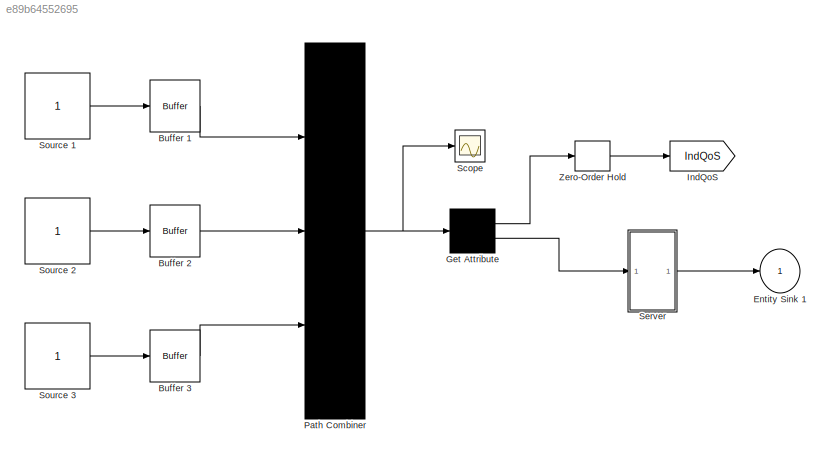
MODEL slx_e89b64552695
KIND model
CONFIG AbsTol = auto
CONFIG EnableMultiTasking = off
CONFIG FixedStep = auto
CONFIG MaxStep = auto
CONFIG MinStep = auto
CONFIG RelTol = 1e-3
CONFIG SampleTimeConstraint = Unconstrained
CONFIG SolverName = VariableStepAuto
CONFIG StartTime = 0.0
CONFIG StopTime = 10.0
BLOCK [Buffer] Buffer 1
  OutputFrames = off
BLOCK [Buffer] Buffer 2
  N = 65
  OutputFrames = off
BLOCK [Buffer] Buffer 3
  N = 66
  OutputFrames = off
BLOCK [Outport] Entity Sink 1
BLOCK [Demux] Get Attribute
  DisplayOption = none
  Outputs = 2
  Ports = [1, 2]
BLOCK [Goto] IndQoS
  GotoTag = IndQoS
  IconDisplay = Tag and signal name
BLOCK [Mux] Path Combiner
  DisplayOption = signals
  Inputs = 3
  Ports = [3, 1]
BLOCK [Scope] Scope
  Floating = off
  NumInputPorts = 1
  Ports = [1]
  ScopeSpecificationString = Simulink.scopes.TimeScopeBlockCfg('CurrentConfiguration', extmgr.ConfigurationSet(extmgr.Configuration('Core','General UI',true),extmgr.Configuration('Core','Source UI',true),extmgr.Configuration('Sources','WiredSimulink',true),extmgr.Configuration('Visuals','Time Domain',true),extmgr.Configuration('Tools','Plot Navigation',true),extmgr.Configuration('Tools','Measurements',true,'Version','2021a'))...<+19ch>
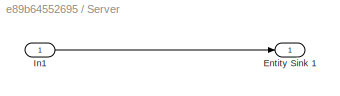
BLOCK [SubSystem] Server
  Ports = [1, 1]
  RequestExecContextInheritance = off
BLOCK [Outport] Server/Entity Sink 1
BLOCK [Inport] Server/In1
BLOCK [Constant] Source 1
BLOCK [Constant] Source 2
BLOCK [Constant] Source 3
BLOCK [ZeroOrderHold] Zero-Order Hold
  SampleTime = -1
LINE Buffer 1:1 -> Path Combiner:1
LINE Buffer 2:1 -> Path Combiner:2
LINE Buffer 3:1 -> Path Combiner:3
LINE Get Attribute:1 -> Zero-Order Hold:1
LINE Get Attribute:2 -> Server:1
NET Path Combiner:1 -> Get Attribute:1, Scope:1
LINE Server/In1:1 -> Server/Entity Sink 1:1
LINE Server:1 -> Entity Sink 1:1
LINE Source 1:1 -> Buffer 1:1
LINE Source 2:1 -> Buffer 2:1
LINE Source 3:1 -> Buffer 3:1
LINE Zero-Order Hold:1 -> IndQoS:1
note: NET lines group one-source signal fan-out (src -> all destinations, sorted); 1:1 wires keep LINE
